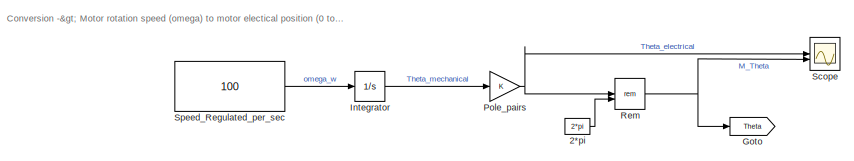
[diagram: root canvas - part 1/3, top left region]
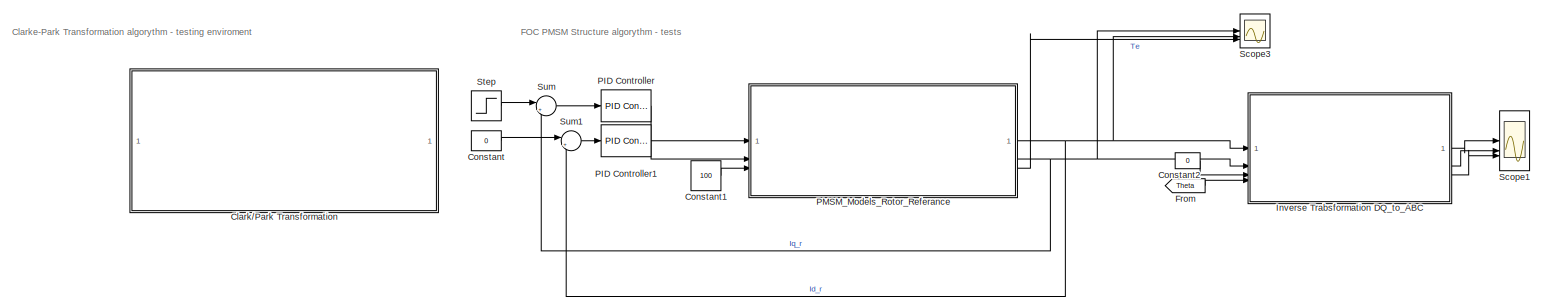
[diagram: root canvas - part 2/3, full width, middle band]
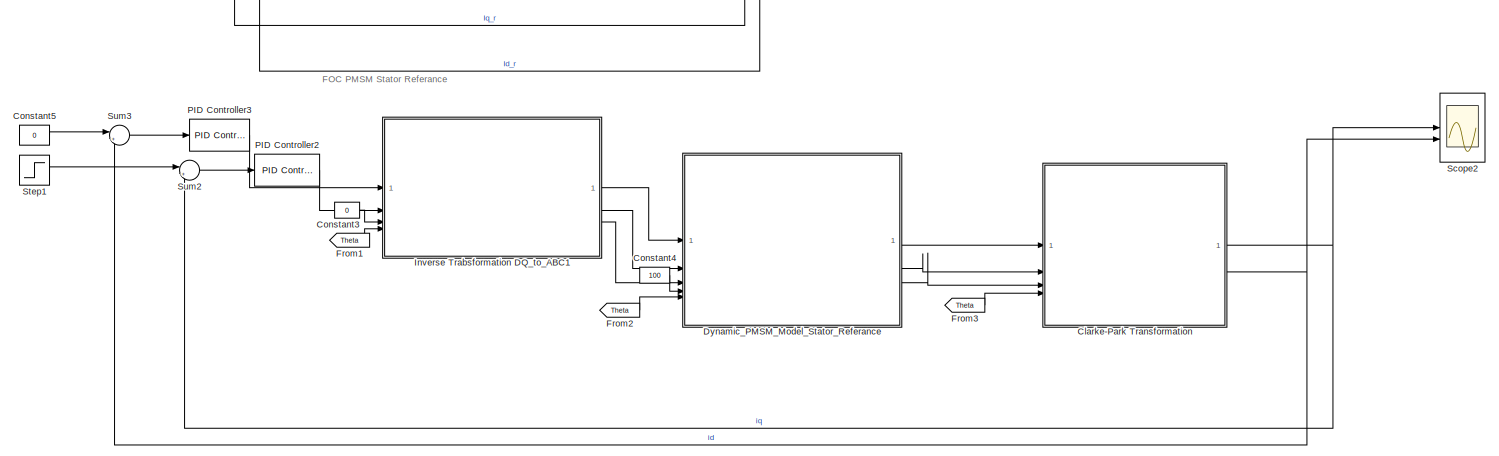
[diagram: root canvas - part 3/3, full width, bottom band]
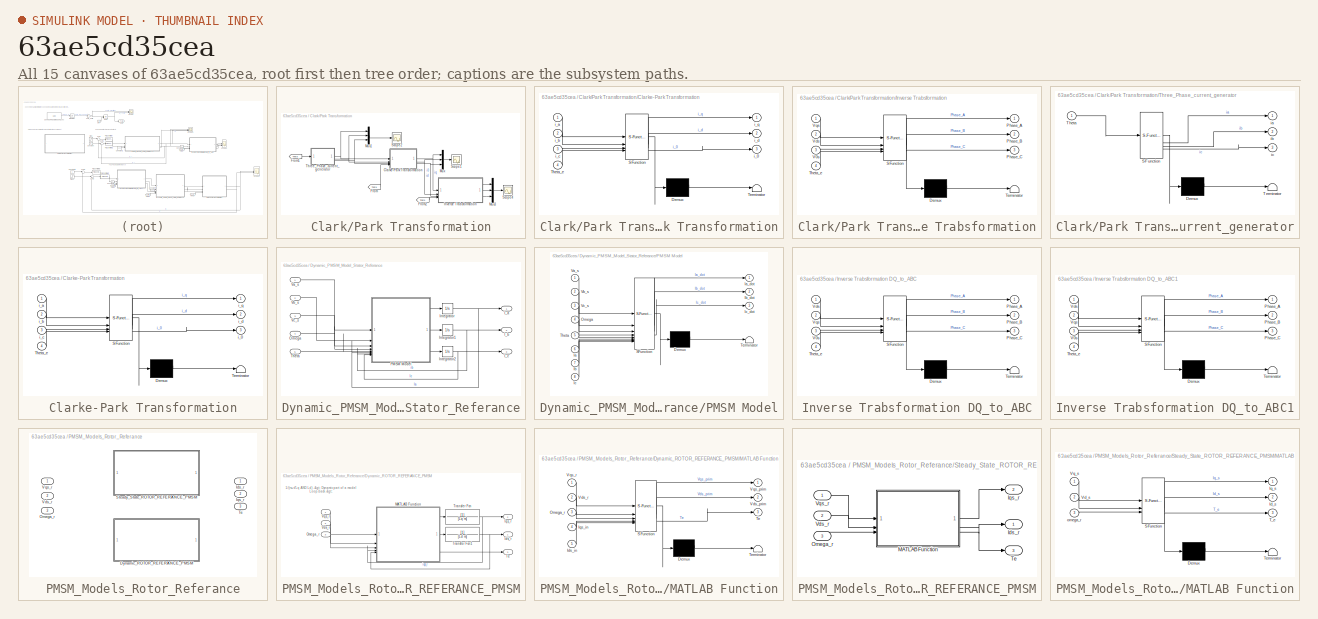
[diagram: thumbnail index - all 15 canvases of the model, root first then tree order]
MODEL slx_63ae5cd35cea
KIND model
CONFIG AbsTol = auto
CONFIG EnableMultiTasking = off
CONFIG FixedStep = 1e-5
CONFIG MaxStep = auto
CONFIG MinStep = auto
CONFIG RelTol = 1e-3
CONFIG SampleTimeConstraint = Unconstrained
CONFIG SolverName = ode4
CONFIG StartTime = 0.0
CONFIG StopTime = 2
BLOCK [Constant] 2*pi
  Value = 2*pi
BLOCK [SubSystem] Clark//Park Transformation
  Commented = on
BLOCK [SubSystem] Clark//Park Transformation/Clarke-Park Transformation
  ErrorFcn = Stateflow.Translate.translate
  PermitHierarchicalResolution = ExplicitOnly
  SFBlockType = MATLAB Function
  TreatAsAtomicUnit = on
BLOCK [Demux] Clark//Park Transformation/Clarke-Park Transformation/ Demux 
  Outputs = 1
BLOCK [S-Function] Clark//Park Transformation/Clarke-Park Transformation/ SFunction 
  EnableBusSupport = on
  FunctionName = sf_sfun
  PortCounts = [4 4]
  SFcnIsStateOwnerBlock = off
  SFunctionDeploymentMode = off
  Tag = Stateflow S-Function 2
BLOCK [Terminator] Clark//Park Transformation/Clarke-Park Transformation/ Terminator 
BLOCK [Inport] Clark//Park Transformation/Clarke-Park Transformation/Theta_e
  Port = 4
BLOCK [Outport] Clark//Park Transformation/Clarke-Park Transformation/i_0
  Port = 3
BLOCK [Inport] Clark//Park Transformation/Clarke-Park Transformation/i_a
BLOCK [Inport] Clark//Park Transformation/Clarke-Park Transformation/i_b
  Port = 2
BLOCK [Inport] Clark//Park Transformation/Clarke-Park Transformation/i_c
  Port = 3
BLOCK [Outport] Clark//Park Transformation/Clarke-Park Transformation/i_d
  Port = 2
BLOCK [Outport] Clark//Park Transformation/Clarke-Park Transformation/i_q
BLOCK [From] Clark//Park Transformation/From
  GotoTag = Theta
BLOCK [From] Clark//Park Transformation/From1
  GotoTag = Theta
BLOCK [From] Clark//Park Transformation/From2
  GotoTag = Theta
BLOCK [SubSystem] Clark//Park Transformation/Inverse Trabsformation
  ErrorFcn = Stateflow.Translate.translate
  PermitHierarchicalResolution = ExplicitOnly
  SFBlockType = MATLAB Function
  TreatAsAtomicUnit = on
BLOCK [Demux] Clark//Park Transformation/Inverse Trabsformation/ Demux 
  Outputs = 1
BLOCK [S-Function] Clark//Park Transformation/Inverse Trabsformation/ SFunction 
  EnableBusSupport = on
  FunctionName = sf_sfun
  PortCounts = [4 4]
  SFcnIsStateOwnerBlock = off
  SFunctionDeploymentMode = off
  Tag = Stateflow S-Function 3
BLOCK [Terminator] Clark//Park Transformation/Inverse Trabsformation/ Terminator 
BLOCK [Outport] Clark//Park Transformation/Inverse Trabsformation/Phase_A
BLOCK [Outport] Clark//Park Transformation/Inverse Trabsformation/Phase_B
  Port = 2
BLOCK [Outport] Clark//Park Transformation/Inverse Trabsformation/Phase_C
  Port = 3
BLOCK [Inport] Clark//Park Transformation/Inverse Trabsformation/Theta_e
  Port = 4
BLOCK [Inport] Clark//Park Transformation/Inverse Trabsformation/V0s
  Port = 3
BLOCK [Inport] Clark//Park Transformation/Inverse Trabsformation/Vds
  Port = 2
BLOCK [Inport] Clark//Park Transformation/Inverse Trabsformation/Vqs
BLOCK [Mux] Clark//Park Transformation/Mux
  DisplayOption = bar
  Inputs = 3
BLOCK [Mux] Clark//Park Transformation/Mux1
  DisplayOption = bar
  Inputs = 3
BLOCK [Mux] Clark//Park Transformation/Mux3
  DisplayOption = bar
  Inputs = 3
BLOCK [Scope] Clark//Park Transformation/Scope1
  Floating = off
  NumInputPorts = 1
  ScopeSpecificationString = Simulink.scopes.TimeScopeBlockCfg('CurrentConfiguration', extmgr.ConfigurationSet(extmgr.Configuration('Core','General UI',true),extmgr.Configuration('Core','Source UI',true),extmgr.Configuration('Sources','WiredSimulink',true,'DataLoggingVariableName','ScopeData1'),extmgr.Configuration('Visuals','Time Domain',true,'SerializedDisplays',{struct('MinYLimReal','-0.125','MaxYLimReal','1.125','YLabelRe...<+1428ch>
BLOCK [Scope] Clark//Park Transformation/Scope2
  Floating = off
  NumInputPorts = 2
  ScopeSpecificationString = Simulink.scopes.TimeScopeBlockCfg('CurrentConfiguration', extmgr.ConfigurationSet(extmgr.Configuration('Core','General UI',true),extmgr.Configuration('Core','Source UI',true),extmgr.Configuration('Sources','WiredSimulink',true,'DataLoggingVariableName','ScopeData2'),extmgr.Configuration('Visuals','Time Domain',true,'SerializedDisplays',{struct('MinYLimReal','-1.25','MaxYLimReal','1.25','YLabelReal...<+1691ch>
BLOCK [Scope] Clark//Park Transformation/Scope4
  Floating = off
  NumInputPorts = 1
  ScopeSpecificationString = Simulink.scopes.TimeScopeBlockCfg('CurrentConfiguration', extmgr.ConfigurationSet(extmgr.Configuration('Core','General UI',true),extmgr.Configuration('Core','Source UI',true),extmgr.Configuration('Sources','WiredSimulink',true,'DataLoggingVariableName','ScopeData1'),extmgr.Configuration('Visuals','Time Domain',true,'SerializedDisplays',{struct('MinYLimReal','-0.125','MaxYLimReal','1.125','YLabelRe...<+1428ch>
BLOCK [SubSystem] Clark//Park Transformation/Three_Phase_current_generator
  ErrorFcn = Stateflow.Translate.translate
  PermitHierarchicalResolution = ExplicitOnly
  SFBlockType = MATLAB Function
  TreatAsAtomicUnit = on
BLOCK [Demux] Clark//Park Transformation/Three_Phase_current_generator/ Demux 
  Outputs = 1
BLOCK [S-Function] Clark//Park Transformation/Three_Phase_current_generator/ SFunction 
  EnableBusSupport = on
  FunctionName = sf_sfun
  PortCounts = [1 4]
  SFcnIsStateOwnerBlock = off
  SFunctionDeploymentMode = off
  Tag = Stateflow S-Function 1
BLOCK [Terminator] Clark//Park Transformation/Three_Phase_current_generator/ Terminator 
BLOCK [Inport] Clark//Park Transformation/Three_Phase_current_generator/Theta
BLOCK [Outport] Clark//Park Transformation/Three_Phase_current_generator/ia
BLOCK [Outport] Clark//Park Transformation/Three_Phase_current_generator/ib
  Port = 2
BLOCK [Outport] Clark//Park Transformation/Three_Phase_current_generator/ic
  Port = 3
BLOCK [SubSystem] Clarke-Park Transformation
  ErrorFcn = Stateflow.Translate.translate
  PermitHierarchicalResolution = ExplicitOnly
  SFBlockType = MATLAB Function
  TreatAsAtomicUnit = on
BLOCK [Demux] Clarke-Park Transformation/ Demux 
  Outputs = 1
BLOCK [S-Function] Clarke-Park Transformation/ SFunction 
  EnableBusSupport = on
  FunctionName = sf_sfun
  PortCounts = [4 4]
  SFcnIsStateOwnerBlock = off
  SFunctionDeploymentMode = off
  Tag = Stateflow S-Function 9
BLOCK [Terminator] Clarke-Park Transformation/ Terminator 
BLOCK [Inport] Clarke-Park Transformation/Theta_e
  Port = 4
BLOCK [Outport] Clarke-Park Transformation/i_0
  Port = 3
BLOCK [Inport] Clarke-Park Transformation/i_a
BLOCK [Inport] Clarke-Park Transformation/i_b
  Port = 2
BLOCK [Inport] Clarke-Park Transformation/i_c
  Port = 3
BLOCK [Outport] Clarke-Park Transformation/i_d
  Port = 2
BLOCK [Outport] Clarke-Park Transformation/i_q
BLOCK [Constant] Constant
  Value = 0
BLOCK [Constant] Constant1
  Value = 100
BLOCK [Constant] Constant2
  Value = 0
BLOCK [Constant] Constant3
  Value = 0
BLOCK [Constant] Constant4
  Value = 100
BLOCK [Constant] Constant5
  Value = 0
BLOCK [SubSystem] Dynamic_PMSM_Model_Stator_Referance
BLOCK [Outport] Dynamic_PMSM_Model_Stator_Referance/I_a
BLOCK [Outport] Dynamic_PMSM_Model_Stator_Referance/I_b
  Port = 2
BLOCK [Outport] Dynamic_PMSM_Model_Stator_Referance/I_c
  Port = 3
BLOCK [Integrator] Dynamic_PMSM_Model_Stator_Referance/Integrator
BLOCK [Integrator] Dynamic_PMSM_Model_Stator_Referance/Integrator1
BLOCK [Integrator] Dynamic_PMSM_Model_Stator_Referance/Integrator2
BLOCK [Inport] Dynamic_PMSM_Model_Stator_Referance/Omega
  Port = 4
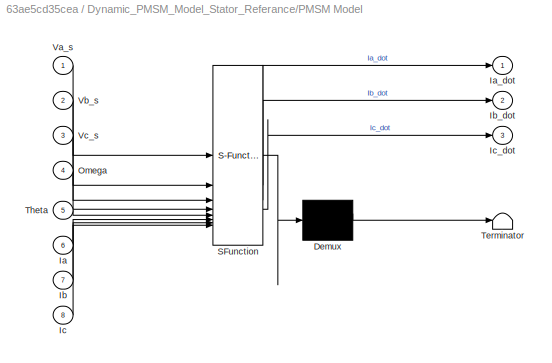
BLOCK [SubSystem] Dynamic_PMSM_Model_Stator_Referance/PMSM Model
  ErrorFcn = Stateflow.Translate.translate
  PermitHierarchicalResolution = ExplicitOnly
  SFBlockType = MATLAB Function
  TreatAsAtomicUnit = on
BLOCK [Demux] Dynamic_PMSM_Model_Stator_Referance/PMSM Model/ Demux 
  Outputs = 1
BLOCK [S-Function] Dynamic_PMSM_Model_Stator_Referance/PMSM Model/ SFunction 
  EnableBusSupport = on
  FunctionName = sf_sfun
  PortCounts = [8 4]
  SFcnIsStateOwnerBlock = off
  SFunctionDeploymentMode = off
  Tag = Stateflow S-Function 8
BLOCK [Terminator] Dynamic_PMSM_Model_Stator_Referance/PMSM Model/ Terminator 
BLOCK [Inport] Dynamic_PMSM_Model_Stator_Referance/PMSM Model/Ia
  Port = 6
BLOCK [Outport] Dynamic_PMSM_Model_Stator_Referance/PMSM Model/Ia_dot
BLOCK [Inport] Dynamic_PMSM_Model_Stator_Referance/PMSM Model/Ib
  Port = 7
BLOCK [Outport] Dynamic_PMSM_Model_Stator_Referance/PMSM Model/Ib_dot
  Port = 2
BLOCK [Inport] Dynamic_PMSM_Model_Stator_Referance/PMSM Model/Ic
  Port = 8
BLOCK [Outport] Dynamic_PMSM_Model_Stator_Referance/PMSM Model/Ic_dot
  Port = 3
BLOCK [Inport] Dynamic_PMSM_Model_Stator_Referance/PMSM Model/Omega
  Port = 4
BLOCK [Inport] Dynamic_PMSM_Model_Stator_Referance/PMSM Model/Theta
  Port = 5
BLOCK [Inport] Dynamic_PMSM_Model_Stator_Referance/PMSM Model/Va_s
BLOCK [Inport] Dynamic_PMSM_Model_Stator_Referance/PMSM Model/Vb_s
  Port = 2
BLOCK [Inport] Dynamic_PMSM_Model_Stator_Referance/PMSM Model/Vc_s
  Port = 3
BLOCK [Inport] Dynamic_PMSM_Model_Stator_Referance/Theta
  Port = 5
BLOCK [Inport] Dynamic_PMSM_Model_Stator_Referance/Va_s
BLOCK [Inport] Dynamic_PMSM_Model_Stator_Referance/Vb_s
  Port = 2
BLOCK [Inport] Dynamic_PMSM_Model_Stator_Referance/Vc_s
  Port = 3
BLOCK [From] From
  GotoTag = Theta
BLOCK [From] From1
  GotoTag = Theta
BLOCK [From] From2
  GotoTag = Theta
BLOCK [From] From3
  GotoTag = Theta
BLOCK [Goto] Goto
  GotoTag = Theta
BLOCK [Integrator] Integrator
BLOCK [SubSystem] Inverse Trabsformation DQ_to_ABC
  ErrorFcn = Stateflow.Translate.translate
  PermitHierarchicalResolution = ExplicitOnly
  SFBlockType = MATLAB Function
  TreatAsAtomicUnit = on
BLOCK [Demux] Inverse Trabsformation DQ_to_ABC/ Demux 
  Outputs = 1
BLOCK [S-Function] Inverse Trabsformation DQ_to_ABC/ SFunction 
  EnableBusSupport = on
  FunctionName = sf_sfun
  PortCounts = [4 4]
  SFcnIsStateOwnerBlock = off
  SFunctionDeploymentMode = off
  Tag = Stateflow S-Function 5
BLOCK [Terminator] Inverse Trabsformation DQ_to_ABC/ Terminator 
BLOCK [Outport] Inverse Trabsformation DQ_to_ABC/Phase_A
BLOCK [Outport] Inverse Trabsformation DQ_to_ABC/Phase_B
  Port = 2
BLOCK [Outport] Inverse Trabsformation DQ_to_ABC/Phase_C
  Port = 3
BLOCK [Inport] Inverse Trabsformation DQ_to_ABC/Theta_e
  Port = 4
BLOCK [Inport] Inverse Trabsformation DQ_to_ABC/V0s
  Port = 3
BLOCK [Inport] Inverse Trabsformation DQ_to_ABC/Vds
BLOCK [Inport] Inverse Trabsformation DQ_to_ABC/Vqs
  Port = 2
BLOCK [SubSystem] Inverse Trabsformation DQ_to_ABC1
  ErrorFcn = Stateflow.Translate.translate
  PermitHierarchicalResolution = ExplicitOnly
  SFBlockType = MATLAB Function
  TreatAsAtomicUnit = on
BLOCK [Demux] Inverse Trabsformation DQ_to_ABC1/ Demux 
  Outputs = 1
BLOCK [S-Function] Inverse Trabsformation DQ_to_ABC1/ SFunction 
  EnableBusSupport = on
  FunctionName = sf_sfun
  PortCounts = [4 4]
  SFcnIsStateOwnerBlock = off
  SFunctionDeploymentMode = off
  Tag = Stateflow S-Function 7
BLOCK [Terminator] Inverse Trabsformation DQ_to_ABC1/ Terminator 
BLOCK [Outport] Inverse Trabsformation DQ_to_ABC1/Phase_A
BLOCK [Outport] Inverse Trabsformation DQ_to_ABC1/Phase_B
  Port = 2
BLOCK [Outport] Inverse Trabsformation DQ_to_ABC1/Phase_C
  Port = 3
BLOCK [Inport] Inverse Trabsformation DQ_to_ABC1/Theta_e
  Port = 4
BLOCK [Inport] Inverse Trabsformation DQ_to_ABC1/V0s
  Port = 3
BLOCK [Inport] Inverse Trabsformation DQ_to_ABC1/Vds
BLOCK [Inport] Inverse Trabsformation DQ_to_ABC1/Vqs
  Port = 2
BLOCK [Reference] PID Controller  REF=slpidlib/PID Controller
  LibrarySourceBlock = simulink/Continuous/PID Controller
  SourceBlock = slpidlib/PID Controller
  SourceType = PID 1dof
BLOCK [Reference] PID Controller1  REF=slpidlib/PID Controller
  LibrarySourceBlock = simulink/Continuous/PID Controller
  SourceBlock = slpidlib/PID Controller
  SourceType = PID 1dof
BLOCK [Reference] PID Controller2  REF=slpidlib/PID Controller
  LibrarySourceBlock = simulink/Continuous/PID Controller
  SourceBlock = slpidlib/PID Controller
  SourceType = PID 1dof
BLOCK [Reference] PID Controller3  REF=slpidlib/PID Controller
  LibrarySourceBlock = simulink/Continuous/PID Controller
  SourceBlock = slpidlib/PID Controller
  SourceType = PID 1dof
BLOCK [SubSystem] PMSM_Models_Rotor_Referance
  Variant = on
BLOCK [SubSystem] PMSM_Models_Rotor_Referance/Dynamic_ROTOR_REFERANCE_PMSM
  VariantControl = Model==2
BLOCK [Outport] PMSM_Models_Rotor_Referance/Dynamic_ROTOR_REFERANCE_PMSM/Ids_r
BLOCK [Outport] PMSM_Models_Rotor_Referance/Dynamic_ROTOR_REFERANCE_PMSM/Iqs_r
  Port = 2
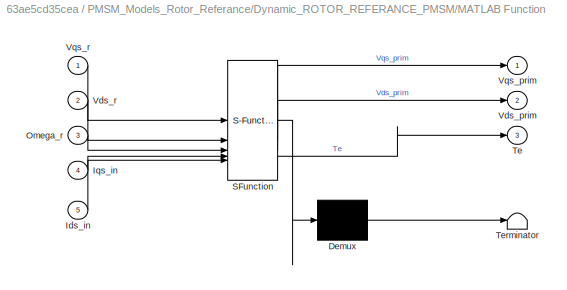
BLOCK [SubSystem] PMSM_Models_Rotor_Referance/Dynamic_ROTOR_REFERANCE_PMSM/MATLAB Function
  ErrorFcn = Stateflow.Translate.translate
  PermitHierarchicalResolution = ExplicitOnly
  SFBlockType = MATLAB Function
  TreatAsAtomicUnit = on
BLOCK [Demux] PMSM_Models_Rotor_Referance/Dynamic_ROTOR_REFERANCE_PMSM/MATLAB Function/ Demux 
  Outputs = 1
BLOCK [S-Function] PMSM_Models_Rotor_Referance/Dynamic_ROTOR_REFERANCE_PMSM/MATLAB Function/ SFunction 
  EnableBusSupport = on
  FunctionName = sf_sfun
  PortCounts = [5 4]
  SFcnIsStateOwnerBlock = off
  SFunctionDeploymentMode = off
  Tag = Stateflow S-Function 6
BLOCK [Terminator] PMSM_Models_Rotor_Referance/Dynamic_ROTOR_REFERANCE_PMSM/MATLAB Function/ Terminator 
BLOCK [Inport] PMSM_Models_Rotor_Referance/Dynamic_ROTOR_REFERANCE_PMSM/MATLAB Function/Ids_in
  Port = 5
BLOCK [Inport] PMSM_Models_Rotor_Referance/Dynamic_ROTOR_REFERANCE_PMSM/MATLAB Function/Iqs_in
  Port = 4
BLOCK [Inport] PMSM_Models_Rotor_Referance/Dynamic_ROTOR_REFERANCE_PMSM/MATLAB Function/Omega_r
  Port = 3
BLOCK [Outport] PMSM_Models_Rotor_Referance/Dynamic_ROTOR_REFERANCE_PMSM/MATLAB Function/Te
  Port = 3
BLOCK [Outport] PMSM_Models_Rotor_Referance/Dynamic_ROTOR_REFERANCE_PMSM/MATLAB Function/Vds_prim
  Port = 2
BLOCK [Inport] PMSM_Models_Rotor_Referance/Dynamic_ROTOR_REFERANCE_PMSM/MATLAB Function/Vds_r
  Port = 2
BLOCK [Outport] PMSM_Models_Rotor_Referance/Dynamic_ROTOR_REFERANCE_PMSM/MATLAB Function/Vqs_prim
BLOCK [Inport] PMSM_Models_Rotor_Referance/Dynamic_ROTOR_REFERANCE_PMSM/MATLAB Function/Vqs_r
BLOCK [Inport] PMSM_Models_Rotor_Referance/Dynamic_ROTOR_REFERANCE_PMSM/Omega_r
  Port = 3
BLOCK [Outport] PMSM_Models_Rotor_Referance/Dynamic_ROTOR_REFERANCE_PMSM/Te
  Port = 3
BLOCK [TransferFcn] PMSM_Models_Rotor_Referance/Dynamic_ROTOR_REFERANCE_PMSM/Transfer Fcn
  Denominator = [Lq rs]
BLOCK [TransferFcn] PMSM_Models_Rotor_Referance/Dynamic_ROTOR_REFERANCE_PMSM/Transfer Fcn1
  Denominator = [Ld rs]
BLOCK [Inport] PMSM_Models_Rotor_Referance/Dynamic_ROTOR_REFERANCE_PMSM/Vds_r
  Port = 2
BLOCK [Inport] PMSM_Models_Rotor_Referance/Dynamic_ROTOR_REFERANCE_PMSM/Vqs_r
BLOCK [Outport] PMSM_Models_Rotor_Referance/Ids_r
BLOCK [Outport] PMSM_Models_Rotor_Referance/Iqs_r
  Port = 2
BLOCK [Inport] PMSM_Models_Rotor_Referance/Omega_r
  Port = 3
BLOCK [SubSystem] PMSM_Models_Rotor_Referance/Steady_State_ROTOR_REFERANCE_PMSM
  VariantControl = Model==1
BLOCK [Outport] PMSM_Models_Rotor_Referance/Steady_State_ROTOR_REFERANCE_PMSM/Ids_r
BLOCK [Outport] PMSM_Models_Rotor_Referance/Steady_State_ROTOR_REFERANCE_PMSM/Iqs_r
  Port = 2
BLOCK [SubSystem] PMSM_Models_Rotor_Referance/Steady_State_ROTOR_REFERANCE_PMSM/MATLAB Function
  ErrorFcn = Stateflow.Translate.translate
  PermitHierarchicalResolution = ExplicitOnly
  SFBlockType = MATLAB Function
  TreatAsAtomicUnit = on
BLOCK [Demux] PMSM_Models_Rotor_Referance/Steady_State_ROTOR_REFERANCE_PMSM/MATLAB Function/ Demux 
  Outputs = 1
BLOCK [S-Function] PMSM_Models_Rotor_Referance/Steady_State_ROTOR_REFERANCE_PMSM/MATLAB Function/ SFunction 
  EnableBusSupport = on
  FunctionName = sf_sfun
  PortCounts = [3 4]
  SFcnIsStateOwnerBlock = off
  SFunctionDeploymentMode = off
  Tag = Stateflow S-Function 4
BLOCK [Terminator] PMSM_Models_Rotor_Referance/Steady_State_ROTOR_REFERANCE_PMSM/MATLAB Function/ Terminator 
BLOCK [Outport] PMSM_Models_Rotor_Referance/Steady_State_ROTOR_REFERANCE_PMSM/MATLAB Function/Id_s
  Port = 2
BLOCK [Outport] PMSM_Models_Rotor_Referance/Steady_State_ROTOR_REFERANCE_PMSM/MATLAB Function/Iq_s
BLOCK [Outport] PMSM_Models_Rotor_Referance/Steady_State_ROTOR_REFERANCE_PMSM/MATLAB Function/T_e
  Port = 3
BLOCK [Inport] PMSM_Models_Rotor_Referance/Steady_State_ROTOR_REFERANCE_PMSM/MATLAB Function/Vd_s
  Port = 2
BLOCK [Inport] PMSM_Models_Rotor_Referance/Steady_State_ROTOR_REFERANCE_PMSM/MATLAB Function/Vq_s
BLOCK [Inport] PMSM_Models_Rotor_Referance/Steady_State_ROTOR_REFERANCE_PMSM/MATLAB Function/omega_r
  Port = 3
BLOCK [Inport] PMSM_Models_Rotor_Referance/Steady_State_ROTOR_REFERANCE_PMSM/Omega_r
  Port = 3
BLOCK [Outport] PMSM_Models_Rotor_Referance/Steady_State_ROTOR_REFERANCE_PMSM/Te
  Port = 3
BLOCK [Inport] PMSM_Models_Rotor_Referance/Steady_State_ROTOR_REFERANCE_PMSM/Vds_r
  Port = 2
BLOCK [Inport] PMSM_Models_Rotor_Referance/Steady_State_ROTOR_REFERANCE_PMSM/Vqs_r
BLOCK [Outport] PMSM_Models_Rotor_Referance/Te
  Port = 3
BLOCK [Inport] PMSM_Models_Rotor_Referance/Vds_r
  Port = 2
BLOCK [Inport] PMSM_Models_Rotor_Referance/Vqs_r
BLOCK [Gain] Pole_pairs
BLOCK [Math] Rem
  Operator = rem
BLOCK [Scope] Scope
  Floating = off
  NumInputPorts = 2
  ScopeSpecificationString = Simulink.scopes.TimeScopeBlockCfg('CurrentConfiguration', extmgr.ConfigurationSet(extmgr.Configuration('Core','General UI',true),extmgr.Configuration('Core','Source UI',true),extmgr.Configuration('Sources','WiredSimulink',true),extmgr.Configuration('Visuals','Time Domain',true,'SerializedDisplays',{struct('MinYLimReal','-6.25','MaxYLimReal','56.25','YLabelReal','','MinYLimMag','0.00000','MaxYLimMa...<+1782ch>
BLOCK [Scope] Scope1
  Floating = off
  NumInputPorts = 3
  ScopeSpecificationString = Simulink.scopes.TimeScopeBlockCfg('CurrentConfiguration', extmgr.ConfigurationSet(extmgr.Configuration('Core','General UI',true),extmgr.Configuration('Core','Source UI',true),extmgr.Configuration('Sources','WiredSimulink',true,'DataLoggingVariableName','ScopeData1'),extmgr.Configuration('Visuals','Time Domain',true,'SerializedDisplays',{struct('MinYLimReal','-4.6248','MaxYLimReal','3.97551','YLabe...<+1554ch>
BLOCK [Scope] Scope2
  Floating = off
  NumInputPorts = 2
  ScopeSpecificationString = Simulink.scopes.TimeScopeBlockCfg('CurrentConfiguration', extmgr.ConfigurationSet(extmgr.Configuration('Core','General UI',true),extmgr.Configuration('Core','Source UI',true),extmgr.Configuration('Sources','WiredSimulink',true,'DataLoggingVariableName','ScopeData1'),extmgr.Configuration('Visuals','Time Domain',true),extmgr.Configuration('Tools','Plot Navigation',true),extmgr.Configuration('Tools',...<+40ch>
BLOCK [Scope] Scope3
  Floating = off
  NumInputPorts = 3
  ScopeSpecificationString = Simulink.scopes.TimeScopeBlockCfg('CurrentConfiguration', extmgr.ConfigurationSet(extmgr.Configuration('Core','General UI',true),extmgr.Configuration('Core','Source UI',true),extmgr.Configuration('Sources','WiredSimulink',true,'DataLoggingVariableName','ScopeData3'),extmgr.Configuration('Visuals','Time Domain',true,'SerializedDisplays',{struct('MinYLimReal','-4.34808','MaxYLimReal','0.48312','YLab...<+2731ch>
BLOCK [Constant] Speed_Regulated_per_sec
  Value = 100
BLOCK [Step] Step
  After = 2
  SampleTime = 0
BLOCK [Step] Step1
  After = 2
  SampleTime = 0
BLOCK [Sum] Sum
  Inputs = |+-
BLOCK [Sum] Sum1
  Inputs = |+-
BLOCK [Sum] Sum2
  Inputs = |+-
BLOCK [Sum] Sum3
  Inputs = |+-
ANNOTATION (root): Clarke-Park Transformation algorythm - testing enviroment
ANNOTATION (root): FOC PMSM Stator Referance
ANNOTATION (root): FOC PMSM Structure algorythm - tests
ANNOTATION (root): Conversion -> Motor rotation speed (omega) to motor electical position (0 to 2pi) Theta
ANNOTATION PMSM_Models_Rotor_Referance/Dynamic_ROTOR_REFERANCE_PMSM: 1/(rs+s*Lq AND Ld) -> Dynamic part of a model Loop-back ->
LINE 2*pi:1 -> Rem:2
NET Clark//Park Transformation/Clarke-Park Transformation:1 -> Clark//Park Transformation/Inverse Trabsformation:1, Clark//Park Transformation/Mux:1
NET Clark//Park Transformation/Clarke-Park Transformation:2 -> Clark//Park Transformation/Inverse Trabsformation:2, Clark//Park Transformation/Mux:2
NET Clark//Park Transformation/Clarke-Park Transformation:3 -> Clark//Park Transformation/Inverse Trabsformation:3, Clark//Park Transformation/Mux:3
LINE Clark//Park Transformation/From1:1 -> Clark//Park Transformation/Three_Phase_current_generator:1
LINE Clark//Park Transformation/From2:1 -> Clark//Park Transformation/Inverse Trabsformation:4
LINE Clark//Park Transformation/From:1 -> Clark//Park Transformation/Clarke-Park Transformation:4
LINE Clark//Park Transformation/Inverse Trabsformation:1 -> Clark//Park Transformation/Mux3:1
LINE Clark//Park Transformation/Inverse Trabsformation:2 -> Clark//Park Transformation/Mux3:2
LINE Clark//Park Transformation/Inverse Trabsformation:3 -> Clark//Park Transformation/Mux3:3
LINE Clark//Park Transformation/Mux1:1 -> Clark//Park Transformation/Scope2:1
LINE Clark//Park Transformation/Mux3:1 -> Clark//Park Transformation/Scope4:1
LINE Clark//Park Transformation/Mux:1 -> Clark//Park Transformation/Scope1:1
NET Clark//Park Transformation/Three_Phase_current_generator:1 -> Clark//Park Transformation/Clarke-Park Transformation:1, Clark//Park Transformation/Mux1:1
NET Clark//Park Transformation/Three_Phase_current_generator:2 -> Clark//Park Transformation/Clarke-Park Transformation:2, Clark//Park Transformation/Mux1:2
NET Clark//Park Transformation/Three_Phase_current_generator:3 -> Clark//Park Transformation/Clarke-Park Transformation:3, Clark//Park Transformation/Mux1:3
NET Clarke-Park Transformation:1 -> Scope2:1, Sum2:2
NET Clarke-Park Transformation:2 -> Scope2:2, Sum3:2
LINE Constant1:1 -> PMSM_Models_Rotor_Referance:3
LINE Constant2:1 -> Inverse Trabsformation DQ_to_ABC:3
LINE Constant3:1 -> Inverse Trabsformation DQ_to_ABC1:3
LINE Constant4:1 -> Dynamic_PMSM_Model_Stator_Referance:4
LINE Constant5:1 -> Sum3:1
LINE Constant:1 -> Sum1:1
NET Dynamic_PMSM_Model_Stator_Referance/Integrator1:1 -> Dynamic_PMSM_Model_Stator_Referance/I_b:1, Dynamic_PMSM_Model_Stator_Referance/PMSM Model:7
NET Dynamic_PMSM_Model_Stator_Referance/Integrator2:1 -> Dynamic_PMSM_Model_Stator_Referance/I_c:1, Dynamic_PMSM_Model_Stator_Referance/PMSM Model:8
NET Dynamic_PMSM_Model_Stator_Referance/Integrator:1 -> Dynamic_PMSM_Model_Stator_Referance/I_a:1, Dynamic_PMSM_Model_Stator_Referance/PMSM Model:6
LINE Dynamic_PMSM_Model_Stator_Referance/Omega:1 -> Dynamic_PMSM_Model_Stator_Referance/PMSM Model:4
LINE Dynamic_PMSM_Model_Stator_Referance/PMSM Model:1 -> Dynamic_PMSM_Model_Stator_Referance/Integrator:1
LINE Dynamic_PMSM_Model_Stator_Referance/PMSM Model:2 -> Dynamic_PMSM_Model_Stator_Referance/Integrator1:1
LINE Dynamic_PMSM_Model_Stator_Referance/PMSM Model:3 -> Dynamic_PMSM_Model_Stator_Referance/Integrator2:1
LINE Dynamic_PMSM_Model_Stator_Referance/Theta:1 -> Dynamic_PMSM_Model_Stator_Referance/PMSM Model:5
LINE Dynamic_PMSM_Model_Stator_Referance/Va_s:1 -> Dynamic_PMSM_Model_Stator_Referance/PMSM Model:1
LINE Dynamic_PMSM_Model_Stator_Referance/Vb_s:1 -> Dynamic_PMSM_Model_Stator_Referance/PMSM Model:2
LINE Dynamic_PMSM_Model_Stator_Referance/Vc_s:1 -> Dynamic_PMSM_Model_Stator_Referance/PMSM Model:3
LINE Dynamic_PMSM_Model_Stator_Referance:1 -> Clarke-Park Transformation:1
LINE Dynamic_PMSM_Model_Stator_Referance:2 -> Clarke-Park Transformation:2
LINE Dynamic_PMSM_Model_Stator_Referance:3 -> Clarke-Park Transformation:3
LINE From1:1 -> Inverse Trabsformation DQ_to_ABC1:4
LINE From2:1 -> Dynamic_PMSM_Model_Stator_Referance:5
LINE From3:1 -> Clarke-Park Transformation:4
LINE From:1 -> Inverse Trabsformation DQ_to_ABC:4
LINE Integrator:1 -> Pole_pairs:1
LINE Inverse Trabsformation DQ_to_ABC1:1 -> Dynamic_PMSM_Model_Stator_Referance:1
LINE Inverse Trabsformation DQ_to_ABC1:2 -> Dynamic_PMSM_Model_Stator_Referance:2
LINE Inverse Trabsformation DQ_to_ABC1:3 -> Dynamic_PMSM_Model_Stator_Referance:3
LINE Inverse Trabsformation DQ_to_ABC:1 -> Scope1:1
LINE Inverse Trabsformation DQ_to_ABC:2 -> Scope1:2
LINE Inverse Trabsformation DQ_to_ABC:3 -> Scope1:3
LINE PID Controller1:1 -> PMSM_Models_Rotor_Referance:2
LINE PID Controller2:1 -> Inverse Trabsformation DQ_to_ABC1:2
LINE PID Controller3:1 -> Inverse Trabsformation DQ_to_ABC1:1
LINE PID Controller:1 -> PMSM_Models_Rotor_Referance:1
LINE PMSM_Models_Rotor_Referance/Dynamic_ROTOR_REFERANCE_PMSM/MATLAB Function:1 -> PMSM_Models_Rotor_Referance/Dynamic_ROTOR_REFERANCE_PMSM/Transfer Fcn:1
LINE PMSM_Models_Rotor_Referance/Dynamic_ROTOR_REFERANCE_PMSM/MATLAB Function:2 -> PMSM_Models_Rotor_Referance/Dynamic_ROTOR_REFERANCE_PMSM/Transfer Fcn1:1
LINE PMSM_Models_Rotor_Referance/Dynamic_ROTOR_REFERANCE_PMSM/MATLAB Function:3 -> PMSM_Models_Rotor_Referance/Dynamic_ROTOR_REFERANCE_PMSM/Te:1
LINE PMSM_Models_Rotor_Referance/Dynamic_ROTOR_REFERANCE_PMSM/Omega_r:1 -> PMSM_Models_Rotor_Referance/Dynamic_ROTOR_REFERANCE_PMSM/MATLAB Function:3
NET PMSM_Models_Rotor_Referance/Dynamic_ROTOR_REFERANCE_PMSM/Transfer Fcn1:1 -> PMSM_Models_Rotor_Referance/Dynamic_ROTOR_REFERANCE_PMSM/Ids_r:1, PMSM_Models_Rotor_Referance/Dynamic_ROTOR_REFERANCE_PMSM/MATLAB Function:5
NET PMSM_Models_Rotor_Referance/Dynamic_ROTOR_REFERANCE_PMSM/Transfer Fcn:1 -> PMSM_Models_Rotor_Referance/Dynamic_ROTOR_REFERANCE_PMSM/Iqs_r:1, PMSM_Models_Rotor_Referance/Dynamic_ROTOR_REFERANCE_PMSM/MATLAB Function:4
LINE PMSM_Models_Rotor_Referance/Dynamic_ROTOR_REFERANCE_PMSM/Vds_r:1 -> PMSM_Models_Rotor_Referance/Dynamic_ROTOR_REFERANCE_PMSM/MATLAB Function:2
LINE PMSM_Models_Rotor_Referance/Dynamic_ROTOR_REFERANCE_PMSM/Vqs_r:1 -> PMSM_Models_Rotor_Referance/Dynamic_ROTOR_REFERANCE_PMSM/MATLAB Function:1
LINE PMSM_Models_Rotor_Referance/Steady_State_ROTOR_REFERANCE_PMSM/MATLAB Function:1 -> PMSM_Models_Rotor_Referance/Steady_State_ROTOR_REFERANCE_PMSM/Iqs_r:1
LINE PMSM_Models_Rotor_Referance/Steady_State_ROTOR_REFERANCE_PMSM/MATLAB Function:2 -> PMSM_Models_Rotor_Referance/Steady_State_ROTOR_REFERANCE_PMSM/Ids_r:1
LINE PMSM_Models_Rotor_Referance/Steady_State_ROTOR_REFERANCE_PMSM/MATLAB Function:3 -> PMSM_Models_Rotor_Referance/Steady_State_ROTOR_REFERANCE_PMSM/Te:1
LINE PMSM_Models_Rotor_Referance/Steady_State_ROTOR_REFERANCE_PMSM/Omega_r:1 -> PMSM_Models_Rotor_Referance/Steady_State_ROTOR_REFERANCE_PMSM/MATLAB Function:3
LINE PMSM_Models_Rotor_Referance/Steady_State_ROTOR_REFERANCE_PMSM/Vds_r:1 -> PMSM_Models_Rotor_Referance/Steady_State_ROTOR_REFERANCE_PMSM/MATLAB Function:2
LINE PMSM_Models_Rotor_Referance/Steady_State_ROTOR_REFERANCE_PMSM/Vqs_r:1 -> PMSM_Models_Rotor_Referance/Steady_State_ROTOR_REFERANCE_PMSM/MATLAB Function:1
NET PMSM_Models_Rotor_Referance:1 -> Inverse Trabsformation DQ_to_ABC:1, Scope3:2, Sum1:2
NET PMSM_Models_Rotor_Referance:2 -> Inverse Trabsformation DQ_to_ABC:2, Scope3:1, Sum:2
LINE PMSM_Models_Rotor_Referance:3 -> Scope3:3
NET Pole_pairs:1 -> Rem:1, Scope:1
NET Rem:1 -> Goto:1, Scope:2
LINE Speed_Regulated_per_sec:1 -> Integrator:1
LINE Step1:1 -> Sum2:1
LINE Step:1 -> Sum:1
LINE Sum1:1 -> PID Controller1:1
LINE Sum2:1 -> PID Controller2:1
LINE Sum3:1 -> PID Controller3:1
LINE Sum:1 -> PID Controller:1
note: NET lines group one-source signal fan-out (src -> all destinations, sorted); 1:1 wires keep LINE
CHART Clarke-Park Transformation states=1 transitions=1
  STATE_LABEL 'eML_blk_kernel()'
  STATE_LABEL 'SCRIPT:\nfunction [i_q, i_d, i_0] = fcn(i_a, i_b, i_c, Theta_e)\n\n% The transform matrix\n\n% Ks = (2/3) * [cos(Theta_e) cos(Theta_e-(2*pi/3)) cos(Theta_e+(2*pi/3))\n%               sin(Theta_e) sin(Theta_e-(2*pi/3)) sin(Theta_e+(2*pi/3))\n%               0.5          0.5                   0.5                 ]  \n%\n% [i_q; \n% i_d; = Ks*[i_a, i_b, i_c]\n% i_0]\n\ni_q = (2/3)*(cos(Theta_e)*i_a + cos(Theta_e-...<+170ch>'
CHART Clark//Park Transformation/Three_Phase_current_generator states=1 transitions=1
  STATE_LABEL 'eML_blk_kernel()'
  STATE_LABEL 'SCRIPT:\nfunction [ia,ib,ic] = fcn(Theta)\n\nia = cos(Theta);\nib = cos(Theta - (2*pi/3));\nic= cos(Theta + (2*pi/3));\n\nend\n'
CHART Clark//Park Transformation/Clarke-Park Transformation states=1 transitions=1
  STATE_LABEL 'eML_blk_kernel()'
  STATE_LABEL 'SCRIPT:\nfunction [i_q, i_d, i_0] = fcn(i_a, i_b, i_c, Theta_e)\n\n% The transform matrix\n\n% Ks = (2/3) * [cos(Theta_e) cos(Theta_e-(2*pi/3)) cos(Theta_e+(2*pi/3))\n%               sin(Theta_e) sin(Theta_e-(2*pi/3)) sin(Theta_e+(2*pi/3))\n%               0.5          0.5                   0.5                 ]  \n%\n% [i_q; \n% i_d; = Ks*[i_a, i_b, i_c]\n% i_0]\n\ni_q = (2/3)*(cos(Theta_e)*i_a + cos(Theta_e-...<+170ch>'
CHART Clark//Park Transformation/Inverse Trabsformation states=1 transitions=1
  STATE_LABEL 'eML_blk_kernel()'
  STATE_LABEL 'SCRIPT:\nfunction [Phase_A, Phase_B, Phase_C] = fcn(Vqs, Vds, V0s, Theta_e)\n\n%Inverse function od Iq and Id (DC signals) to three phase A, B and C \n%signals later used for controlling PMSM\n\n%Rotor electrical position\nTheta=Theta_e;\n\n%Phase equations\nPhase_A = cos(Theta)*Vqs + sin(Theta)*Vds + V0s*1;\nPhase_B = cos(Theta-(2*pi/3))*Vqs + sin(Theta-(2*pi/3))*Vds+V0s*1;\nPhase_C = cos(Theta+(2*pi/3))*Vqs...<+40ch>'
CHART PMSM_Models_Rotor_Referance/Steady_State_ROTOR_REFERANCE_PMSM/MATLAB Function states=1 transitions=1
  STATE_LABEL 'eML_blk_kernel()'
  STATE_LABEL 'SCRIPT:\nfunction [Iq_s, Id_s, T_e] = fcn(Vq_s, Vd_s, omega_r)\n\n%Physical constans of the PMSM - steady state\nrs = 0.2;\nLq = 300e-6;\nLd = 300e-6;\nLambda_m_r = 0.01;\nP = 2; %Poles (one pole pair)\n\n\n%Evaluation of DC currents for d and q axis and torque \nK1 = ((rs^2)+(omega_r^2)*Lq*Ld);\n\nIq_s = (rs/K1)*(Vq_s-omega_r*Lambda_m_r-(omega_r*Ld/rs)*Vd_s);\nId_s = (1/K1)*(rs*Vd_s+omega_r*Lq*Vq_s-(omega_r^2)*...<+77ch>'
CHART Inverse Trabsformation DQ_to_ABC states=1 transitions=1
  STATE_LABEL 'eML_blk_kernel()'
  STATE_LABEL 'SCRIPT:\nfunction [Phase_A, Phase_B, Phase_C] = fcn(Vds, Vqs, V0s, Theta_e)\n\n%Inverse function od Iq and Id (DC signals) to three phase A, B and C \n%signals later used for controlling PMSM\n\n%Rotor electrical position\nTheta=Theta_e;\n\n%Phase equations\nPhase_A = cos(Theta)*Vqs + sin(Theta)*Vds + V0s*1;\nPhase_B = cos(Theta-(2*pi/3))*Vqs + sin(Theta-(2*pi/3))*Vds+V0s*1;\nPhase_C = cos(Theta+(2*pi/3))*Vqs...<+40ch>'
CHART PMSM_Models_Rotor_Referance/Dynamic_ROTOR_REFERANCE_PMSM/MATLAB Function states=1 transitions=1
  STATE_LABEL 'eML_blk_kernel()'
  STATE_LABEL 'SCRIPT:\nfunction [Vqs_prim, Vds_prim, Te] = fcn( Vqs_r, Vds_r, Omega_r, Iqs_in, Ids_in)\n\n%Physical constans of the PMSM - steady state \nrs = 0.2;\nLq = 300e-6;\nLd = 300e-6;\n\nLambda_m_r = 0.01; %back EMF coeficient\nP = 2; %Poles (one pole pair)\n\nVqs_prim = (Vqs_r - Omega_r*Lambda_m_r-Omega_r*Ld*Ids_in);\nVds_prim = (Vds_r + Omega_r*Lq*Iqs_in);\n\nTe = (3/2)*(P/2)*(Lambda_m_r*Iqs_in +(Ld-Lq)*Iqs_in*Ids_...<+11ch>'
CHART Inverse Trabsformation DQ_to_ABC1 states=1 transitions=1
  STATE_LABEL 'eML_blk_kernel()'
  STATE_LABEL 'SCRIPT:\nfunction [Phase_A, Phase_B, Phase_C] = fcn(Vds, Vqs, V0s, Theta_e)\n\n%Inverse function od Iq and Id (DC signals) to three phase A, B and C \n%signals later used for controlling PMSM\n\n%Rotor electrical position\nTheta=Theta_e;\n\n%Phase equations\nPhase_A = cos(Theta)*Vqs + sin(Theta)*Vds + V0s*1;\nPhase_B = cos(Theta-(2*pi/3))*Vqs + sin(Theta-(2*pi/3))*Vds+V0s*1;\nPhase_C = cos(Theta+(2*pi/3))*Vqs...<+40ch>'
CHART Dynamic_PMSM_Model_Stator_Referance/PMSM Model states=1 transitions=1
  STATE_LABEL 'eML_blk_kernel()'
  STATE_LABEL 'SCRIPT:\nfunction [Ia_dot, Ib_dot,Ic_dot] = fcn(Va_s,Vb_s,Vc_s,Omega,Theta,Ia,Ib,Ic)\n\n%Physical constans of the PMSM - steady state \nrs = 0.2;\n\nLambda_m_r = 0.01; %Magnetic Flux\nP = 2; %Poles (one pole pair)\n\nLls = 0.01*272e-6; %Lekage\nLa = (2/3)*300.0*1e-6;\n\n\n%Equation - matrix form\n\n%Resistance matrix\nRs = [rs 0 0;\n    0 rs 0;\n    0 0 rs];\n\n%Input voltage vector\nVs = [Va_s;Vb_s;Vc_s];\n\n%Input (in...<+432ch>'
CHART  states=0 transitions=0
CHART  states=0 transitions=0
CHART  states=0 transitions=0
CHART  states=0 transitions=0
CHART  states=0 transitions=0
CHART  states=0 transitions=0
CHART  states=0 transitions=0
CHART  states=0 transitions=0
CHART  states=0 transitions=0
